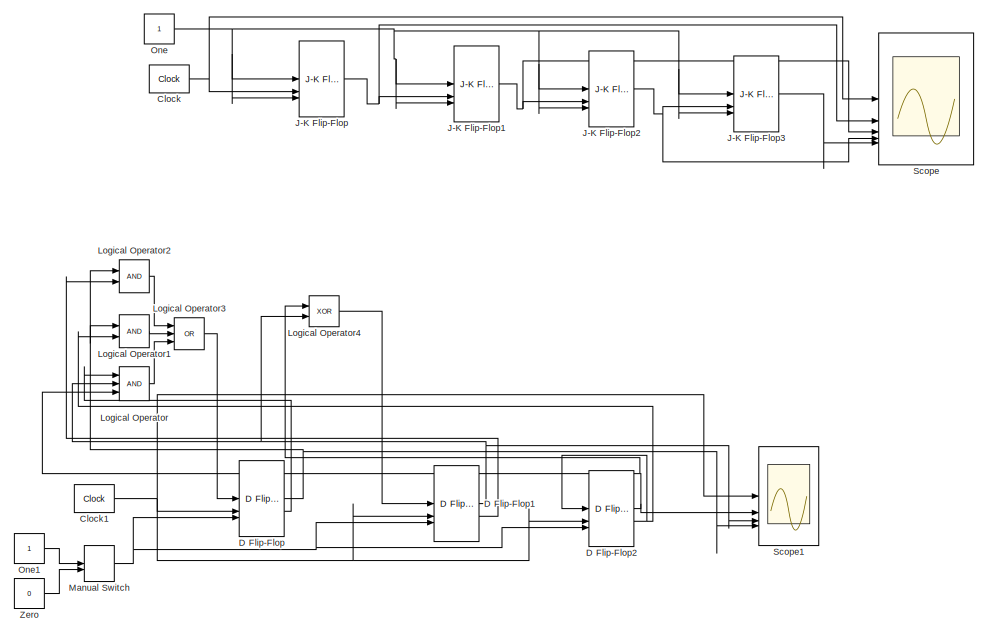
[diagram: root canvas - part 1/2, full width, top band]
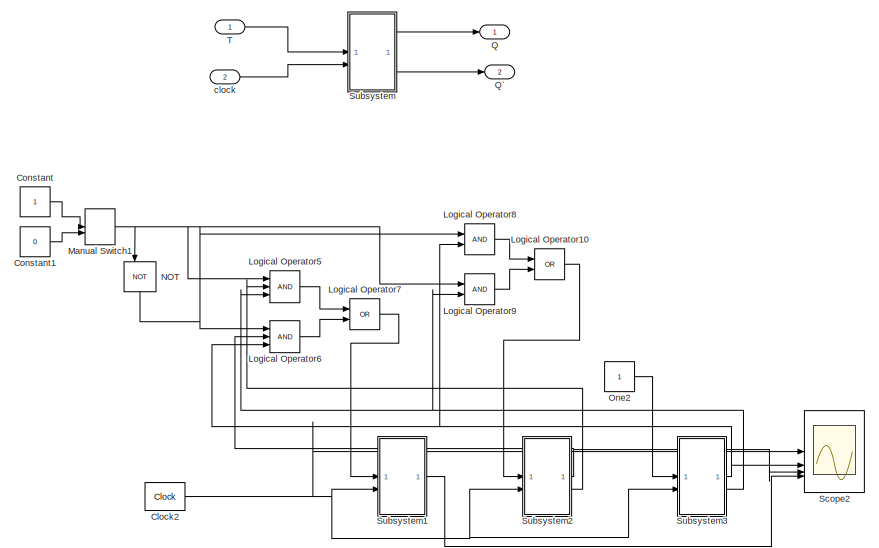
[diagram: root canvas - part 2/2, full width, bottom band]
MODEL slx_def6306f6190
KIND model
CONFIG AbsTol = auto
CONFIG EnableMultiTasking = off
CONFIG FixedStep = auto
CONFIG MaxStep = auto
CONFIG MinStep = auto
CONFIG RelTol = 1e-3
CONFIG SampleTimeConstraint = Unconstrained
CONFIG SolverName = VariableStepAuto
CONFIG StartTime = 0.0
CONFIG StopTime = 30
BLOCK [Reference] Clock  REF=simulink_extras/Flip Flops/Clock
  SourceBlock = simulink_extras/Flip Flops/Clock
  SourceType = Digital clock
BLOCK [Reference] Clock1  REF=simulink_extras/Flip Flops/Clock
  SourceBlock = simulink_extras/Flip Flops/Clock
  SourceType = Digital clock
BLOCK [Reference] Clock2  REF=simulink_extras/Flip Flops/Clock
  SourceBlock = simulink_extras/Flip Flops/Clock
  SourceType = Digital clock
BLOCK [Constant] Constant
BLOCK [Constant] Constant1
  Value = 0
BLOCK [Reference] D Flip-Flop  REF=simulink_extras/Flip Flops/D Flip-Flop
  SourceBlock = simulink_extras/Flip Flops/D Flip-Flop
  SourceType = DFlipFlop
BLOCK [Reference] D Flip-Flop1  REF=simulink_extras/Flip Flops/D Flip-Flop
  SourceBlock = simulink_extras/Flip Flops/D Flip-Flop
  SourceType = DFlipFlop
BLOCK [Reference] D Flip-Flop2  REF=simulink_extras/Flip Flops/D Flip-Flop
  SourceBlock = simulink_extras/Flip Flops/D Flip-Flop
  SourceType = DFlipFlop
BLOCK [Reference] J-K Flip-Flop  REF=simulink_extras/Flip Flops/J-K
Flip-Flop
  SourceBlock = simulink_extras/Flip Flops/J-K\nFlip-Flop
  SourceType = JKFlipFlop
BLOCK [Reference] J-K Flip-Flop1  REF=simulink_extras/Flip Flops/J-K
Flip-Flop
  SourceBlock = simulink_extras/Flip Flops/J-K\nFlip-Flop
  SourceType = JKFlipFlop
BLOCK [Reference] J-K Flip-Flop2  REF=simulink_extras/Flip Flops/J-K
Flip-Flop
  SourceBlock = simulink_extras/Flip Flops/J-K\nFlip-Flop
  SourceType = JKFlipFlop
BLOCK [Reference] J-K Flip-Flop3  REF=simulink_extras/Flip Flops/J-K
Flip-Flop
  SourceBlock = simulink_extras/Flip Flops/J-K\nFlip-Flop
  SourceType = JKFlipFlop
BLOCK [Logic] Logical Operator
  AllPortsSameDT = off
  Inputs = 3
  OutDataTypeStr = boolean
BLOCK [Logic] Logical Operator1
  AllPortsSameDT = off
  OutDataTypeStr = boolean
BLOCK [Logic] Logical Operator10
  AllPortsSameDT = off
  Operator = OR
  OutDataTypeStr = boolean
BLOCK [Logic] Logical Operator2
  AllPortsSameDT = off
  OutDataTypeStr = boolean
BLOCK [Logic] Logical Operator3
  AllPortsSameDT = off
  Inputs = 3
  Operator = OR
  OutDataTypeStr = boolean
BLOCK [Logic] Logical Operator4
  AllPortsSameDT = off
  Operator = XOR
  OutDataTypeStr = boolean
BLOCK [Logic] Logical Operator5
  AllPortsSameDT = off
  Inputs = 3
  OutDataTypeStr = boolean
BLOCK [Logic] Logical Operator6
  AllPortsSameDT = off
  Inputs = 3
  OutDataTypeStr = boolean
BLOCK [Logic] Logical Operator7
  AllPortsSameDT = off
  Operator = OR
  OutDataTypeStr = boolean
BLOCK [Logic] Logical Operator8
  AllPortsSameDT = off
  OutDataTypeStr = boolean
BLOCK [Logic] Logical Operator9
  AllPortsSameDT = off
  OutDataTypeStr = boolean
BLOCK [ManualSwitch] Manual Switch
BLOCK [ManualSwitch] Manual Switch1
BLOCK [Logic] NOT
  AllPortsSameDT = off
  IconShape = distinctive
  NameLocation = left
  Operator = NOT
  OutDataTypeStr = boolean
BLOCK [Constant] One
  OutDataTypeStr = Inherit: Inherit via back propagation
BLOCK [Constant] One1
  OutDataTypeStr = Inherit: Inherit via back propagation
BLOCK [Constant] One2
  OutDataTypeStr = Inherit: Inherit via back propagation
BLOCK [Outport] Q
BLOCK [Outport] Q`
  Port = 2
BLOCK [Scope] Scope
  Floating = off
  NumInputPorts = 5
  ScopeSpecificationString = Simulink.scopes.TimeScopeBlockCfg('CurrentConfiguration', extmgr.ConfigurationSet(extmgr.Configuration('Core','General UI',true),extmgr.Configuration('Core','Source UI',true),extmgr.Configuration('Sources','WiredSimulink',true),extmgr.Configuration('Visuals','Time Domain',true,'SerializedDisplays',{struct('MinYLimReal','-0.125','MaxYLimReal','1.125','YLabelReal','','MinYLimMag','0.00000','MaxYLimM...<+3433ch>
BLOCK [Scope] Scope1
  Floating = off
  NumInputPorts = 4
  ScopeSpecificationString = Simulink.scopes.TimeScopeBlockCfg('CurrentConfiguration', extmgr.ConfigurationSet(extmgr.Configuration('Core','General UI',true,'FigureColor',[0 0 0]),extmgr.Configuration('Core','Source UI',true),extmgr.Configuration('Sources','WiredSimulink',true,'DataLoggingVariableName','ScopeData1'),extmgr.Configuration('Visuals','Time Domain',true,'SerializedDisplays',{struct('MinYLimReal','-0.125','MaxYLimR...<+3573ch>
BLOCK [Scope] Scope2
  Floating = off
  NumInputPorts = 4
  ScopeSpecificationString = Simulink.scopes.TimeScopeBlockCfg('CurrentConfiguration', extmgr.ConfigurationSet(extmgr.Configuration('Core','General UI',true),extmgr.Configuration('Core','Source UI',true),extmgr.Configuration('Sources','WiredSimulink',true,'DataLoggingVariableName','ScopeData2'),extmgr.Configuration('Visuals','Time Domain',true,'SerializedDisplays',{struct('MinYLimReal','-0.125','MaxYLimReal','1.125','YLabelRe...<+3469ch>
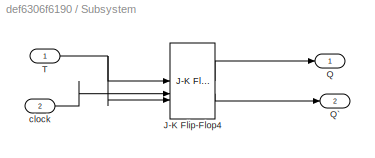
BLOCK [SubSystem] Subsystem
BLOCK [Reference] Subsystem/J-K Flip-Flop4  REF=simulink_extras/Flip Flops/J-K
Flip-Flop
  SourceBlock = simulink_extras/Flip Flops/J-K\nFlip-Flop
  SourceType = JKFlipFlop
BLOCK [Outport] Subsystem/Q
BLOCK [Outport] Subsystem/Q`
  Port = 2
BLOCK [Inport] Subsystem/T
BLOCK [Inport] Subsystem/clock
  Port = 2
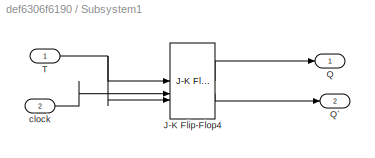
BLOCK [SubSystem] Subsystem1
BLOCK [Reference] Subsystem1/J-K Flip-Flop4  REF=simulink_extras/Flip Flops/J-K
Flip-Flop
  SourceBlock = simulink_extras/Flip Flops/J-K\nFlip-Flop
  SourceType = JKFlipFlop
BLOCK [Outport] Subsystem1/Q
BLOCK [Outport] Subsystem1/Q`
  Port = 2
BLOCK [Inport] Subsystem1/T
BLOCK [Inport] Subsystem1/clock
  Port = 2
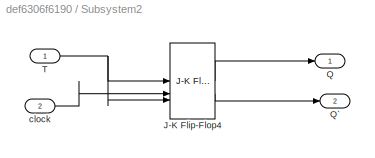
BLOCK [SubSystem] Subsystem2
BLOCK [Reference] Subsystem2/J-K Flip-Flop4  REF=simulink_extras/Flip Flops/J-K
Flip-Flop
  SourceBlock = simulink_extras/Flip Flops/J-K\nFlip-Flop
  SourceType = JKFlipFlop
BLOCK [Outport] Subsystem2/Q
BLOCK [Outport] Subsystem2/Q`
  Port = 2
BLOCK [Inport] Subsystem2/T
BLOCK [Inport] Subsystem2/clock
  Port = 2
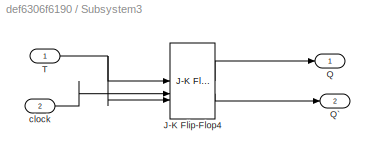
BLOCK [SubSystem] Subsystem3
BLOCK [Reference] Subsystem3/J-K Flip-Flop4  REF=simulink_extras/Flip Flops/J-K
Flip-Flop
  SourceBlock = simulink_extras/Flip Flops/J-K\nFlip-Flop
  SourceType = JKFlipFlop
BLOCK [Outport] Subsystem3/Q
BLOCK [Outport] Subsystem3/Q`
  Port = 2
BLOCK [Inport] Subsystem3/T
BLOCK [Inport] Subsystem3/clock
  Port = 2
BLOCK [Inport] T
BLOCK [Constant] Zero
  OutDataTypeStr = Inherit: Inherit via back propagation
  Value = 0
BLOCK [Inport] clock
  Port = 2
NET Clock1:1 -> D Flip-Flop1:2, D Flip-Flop2:2, D Flip-Flop:2, Scope1:1
NET Clock2:1 -> Scope2:1, Subsystem1:2, Subsystem2:2, Subsystem3:2
NET Clock:1 -> J-K Flip-Flop:2, Scope:1
LINE Constant1:1 -> Manual Switch1:2
LINE Constant:1 -> Manual Switch1:1
NET D Flip-Flop1:1 -> Logical Operator4:2, Logical Operator:2, Scope1:3
LINE D Flip-Flop1:2 -> Logical Operator2:2
NET D Flip-Flop2:1 -> Logical Operator4:1, Logical Operator:3, Scope1:2
NET D Flip-Flop2:2 -> D Flip-Flop2:1, Logical Operator1:2
NET D Flip-Flop:1 -> Logical Operator1:1, Logical Operator2:1, Scope1:4
LINE D Flip-Flop:2 -> Logical Operator:1
NET J-K Flip-Flop1:1 -> J-K Flip-Flop2:2, Scope:3
NET J-K Flip-Flop2:1 -> J-K Flip-Flop3:2, Scope:4
LINE J-K Flip-Flop3:1 -> Scope:5
NET J-K Flip-Flop:1 -> J-K Flip-Flop1:2, Scope:2
LINE Logical Operator10:1 -> Subsystem2:1
LINE Logical Operator1:1 -> Logical Operator3:2
LINE Logical Operator2:1 -> Logical Operator3:1
LINE Logical Operator3:1 -> D Flip-Flop:1
LINE Logical Operator4:1 -> D Flip-Flop1:1
LINE Logical Operator5:1 -> Logical Operator7:1
LINE Logical Operator6:1 -> Logical Operator7:2
LINE Logical Operator7:1 -> Subsystem1:1
LINE Logical Operator8:1 -> Logical Operator10:1
LINE Logical Operator9:1 -> Logical Operator10:2
LINE Logical Operator:1 -> Logical Operator3:3
NET Manual Switch1:1 -> Logical Operator5:1, Logical Operator9:1, NOT:1
NET Manual Switch:1 -> D Flip-Flop1:3, D Flip-Flop2:3, D Flip-Flop:3
NET NOT:1 -> Logical Operator6:1, Logical Operator8:1
LINE One1:1 -> Manual Switch:1
LINE One2:1 -> Subsystem3:1
NET One:1 -> J-K Flip-Flop1:1, J-K Flip-Flop1:3, J-K Flip-Flop2:1, J-K Flip-Flop2:3, J-K Flip-Flop3:1, J-K Flip-Flop3:3, J-K Flip-Flop:1, J-K Flip-Flop:3
LINE Subsystem/J-K Flip-Flop4:1 -> Subsystem/Q:1
LINE Subsystem/J-K Flip-Flop4:2 -> Subsystem/Q`:1
NET Subsystem/T:1 -> Subsystem/J-K Flip-Flop4:1, Subsystem/J-K Flip-Flop4:3
LINE Subsystem/clock:1 -> Subsystem/J-K Flip-Flop4:2
LINE Subsystem1/J-K Flip-Flop4:1 -> Subsystem1/Q:1
LINE Subsystem1/J-K Flip-Flop4:2 -> Subsystem1/Q`:1
NET Subsystem1/T:1 -> Subsystem1/J-K Flip-Flop4:1, Subsystem1/J-K Flip-Flop4:3
LINE Subsystem1/clock:1 -> Subsystem1/J-K Flip-Flop4:2
LINE Subsystem1:1 -> Scope2:4
LINE Subsystem2/J-K Flip-Flop4:1 -> Subsystem2/Q:1
LINE Subsystem2/J-K Flip-Flop4:2 -> Subsystem2/Q`:1
NET Subsystem2/T:1 -> Subsystem2/J-K Flip-Flop4:1, Subsystem2/J-K Flip-Flop4:3
LINE Subsystem2/clock:1 -> Subsystem2/J-K Flip-Flop4:2
NET Subsystem2:1 -> Logical Operator6:2, Scope2:3
LINE Subsystem2:2 -> Logical Operator5:2
LINE Subsystem3/J-K Flip-Flop4:1 -> Subsystem3/Q:1
LINE Subsystem3/J-K Flip-Flop4:2 -> Subsystem3/Q`:1
NET Subsystem3/T:1 -> Subsystem3/J-K Flip-Flop4:1, Subsystem3/J-K Flip-Flop4:3
LINE Subsystem3/clock:1 -> Subsystem3/J-K Flip-Flop4:2
NET Subsystem3:1 -> Logical Operator6:3, Logical Operator8:2, Scope2:2
NET Subsystem3:2 -> Logical Operator5:3, Logical Operator9:2
LINE Subsystem:1 -> Q:1
LINE Subsystem:2 -> Q`:1
LINE T:1 -> Subsystem:1
LINE Zero:1 -> Manual Switch:2
LINE clock:1 -> Subsystem:2
note: NET lines group one-source signal fan-out (src -> all destinations, sorted); 1:1 wires keep LINE
